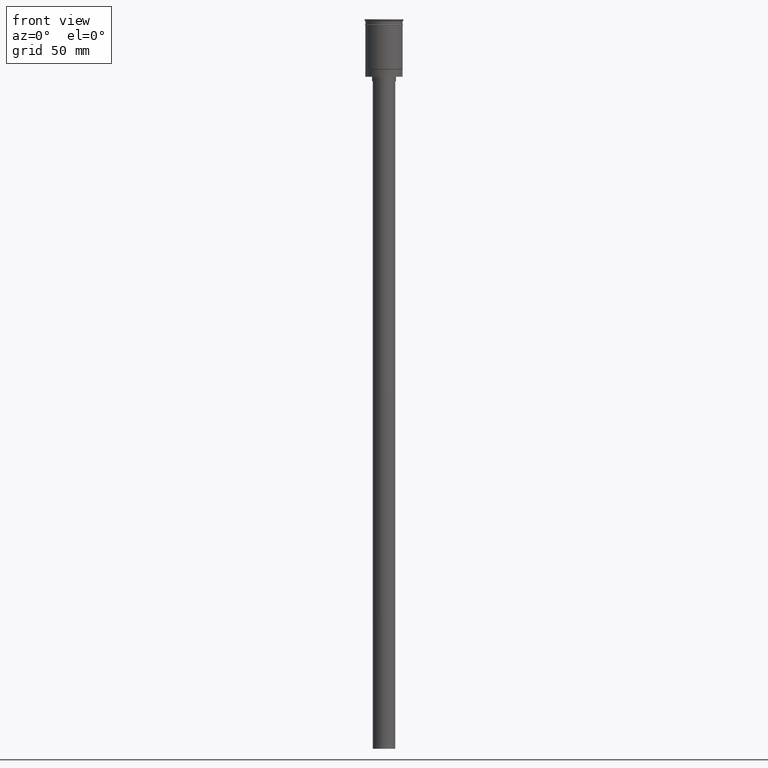
[diagram: clean part render]
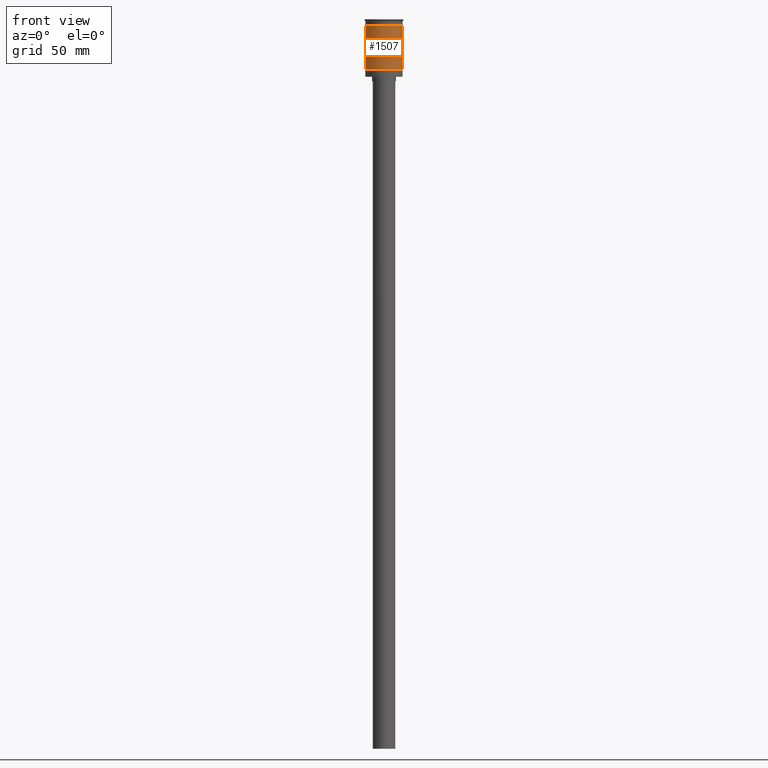
[diagram: same view with one face highlighted and labeled with its STEP entity id]
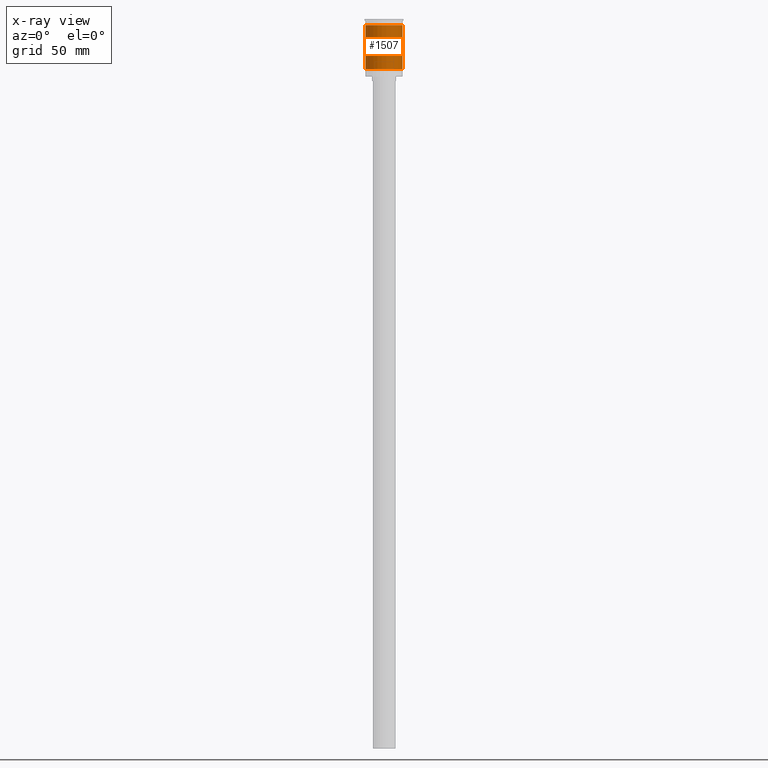
[diagram: x-ray of the same camera — body ghosted, the highlighted face saturated]
A machine part, front view. The second image highlights one B-rep face of the part: STEP entity #1507.
The next image is the same camera in x-ray: the body ghosted, the highlighted face saturated — about 0% of this face is hidden behind the body in this view.
In plain terms, the highlighted cylindrical surface (edge-blend (fillet) strip) has radius 12.5 mm, axis along (-0, -0, 1).
Its self-contained STEP definition (entity closure, byte-faithful):
#8 = CARTESIAN_POINT ( 'NONE',  ( -12.50000000000000000, 1.530808498934191521E-15, -3.999999999999996447 ) ) ;
#14 = CARTESIAN_POINT ( 'NONE',  ( 0.000000000000000000, 0.000000000000000000, -33.30000000000005400 ) ) ;
#62 = AXIS2_PLACEMENT_3D ( 'NONE', #1350, #1471, #957 ) ;
#63 = ORIENTED_EDGE ( 'NONE', *, *, #388, .T. ) ;
#128 = CARTESIAN_POINT ( 'NONE',  ( 12.49999999999999645, 0.000000000000000000, 0.000000000000000000 ) ) ;
#134 = LINE ( 'NONE', #1252, #1116 ) ;
#175 = DIRECTION ( 'NONE',  ( -0.000000000000000000, -0.000000000000000000, 1.000000000000000000 ) ) ;
#186 = DIRECTION ( 'NONE',  ( 1.000000000000000000, 0.000000000000000000, 0.000000000000000000 ) ) ;
#307 = AXIS2_PLACEMENT_3D ( 'NONE', #540, #175, #186 ) ;
#388 = EDGE_CURVE ( 'NONE', #474, #877, #1402, .T. ) ;
#474 = VERTEX_POINT ( 'NONE', #783 ) ;
#509 = DIRECTION ( 'NONE',  ( -0.000000000000000000, -0.000000000000000000, 1.000000000000000000 ) ) ;
#540 = CARTESIAN_POINT ( 'NONE',  ( 0.000000000000000000, 0.000000000000000000, -3.999999999999996447 ) ) ;
#584 = VERTEX_POINT ( 'NONE', #817 ) ;
#607 = VECTOR ( 'NONE', #1260, 1000.000000000000000 ) ;
#647 = LINE ( 'NONE', #128, #607 ) ;
#678 = EDGE_CURVE ( 'NONE', #474, #1539, #134, .T. ) ;
#712 = EDGE_LOOP ( 'NONE', ( #732, #63, #1196, #1348 ) ) ;
#732 = ORIENTED_EDGE ( 'NONE', *, *, #678, .F. ) ;
#783 = CARTESIAN_POINT ( 'NONE',  ( -12.49999999999999289, 0.000000000000000000, -33.30000000000005400 ) ) ;
#817 = CARTESIAN_POINT ( 'NONE',  ( 12.49999999999999822, 0.000000000000000000, -3.999999999999996447 ) ) ;
#854 = EDGE_CURVE ( 'NONE', #1539, #584, #859, .T. ) ;
#859 = CIRCLE ( 'NONE', #307, 12.49999999999999822 ) ;
#877 = VERTEX_POINT ( 'NONE', #933 ) ;
#933 = CARTESIAN_POINT ( 'NONE',  ( 12.49999999999999645, 1.530808498934191127E-15, -33.30000000000005400 ) ) ;
#957 = DIRECTION ( 'NONE',  ( 1.000000000000000000, 0.000000000000000000, 0.000000000000000000 ) ) ;
#1027 = DIRECTION ( 'NONE',  ( -1.000000000000000000, 0.000000000000000000, 0.000000000000000000 ) ) ;
#1116 = VECTOR ( 'NONE', #1369, 1000.000000000000000 ) ;
#1196 = ORIENTED_EDGE ( 'NONE', *, *, #1540, .T. ) ;
#1220 = CYLINDRICAL_SURFACE ( 'NONE', #62, 12.49999999999999645 ) ;
#1252 = CARTESIAN_POINT ( 'NONE',  ( -12.49999999999999645, 1.530808498934191127E-15, 0.000000000000000000 ) ) ;
#1260 = DIRECTION ( 'NONE',  ( -0.000000000000000000, -0.000000000000000000, 1.000000000000000000 ) ) ;
#1348 = ORIENTED_EDGE ( 'NONE', *, *, #854, .F. ) ;
#1350 = CARTESIAN_POINT ( 'NONE',  ( 0.000000000000000000, 0.000000000000000000, 0.000000000000000000 ) ) ;
#1369 = DIRECTION ( 'NONE',  ( -0.000000000000000000, -0.000000000000000000, 1.000000000000000000 ) ) ;
#1402 = CIRCLE ( 'NONE', #1576, 12.49999999999999645 ) ;
#1471 = DIRECTION ( 'NONE',  ( -0.000000000000000000, -0.000000000000000000, 1.000000000000000000 ) ) ;
#1507 = ADVANCED_FACE ( 'NONE', ( #1559 ), #1220, .T. ) ;
#1539 = VERTEX_POINT ( 'NONE', #8 ) ;
#1540 = EDGE_CURVE ( 'NONE', #877, #584, #647, .T. ) ;
#1559 = FACE_OUTER_BOUND ( 'NONE', #712, .T. ) ;
#1576 = AXIS2_PLACEMENT_3D ( 'NONE', #14, #509, #1027 ) ;